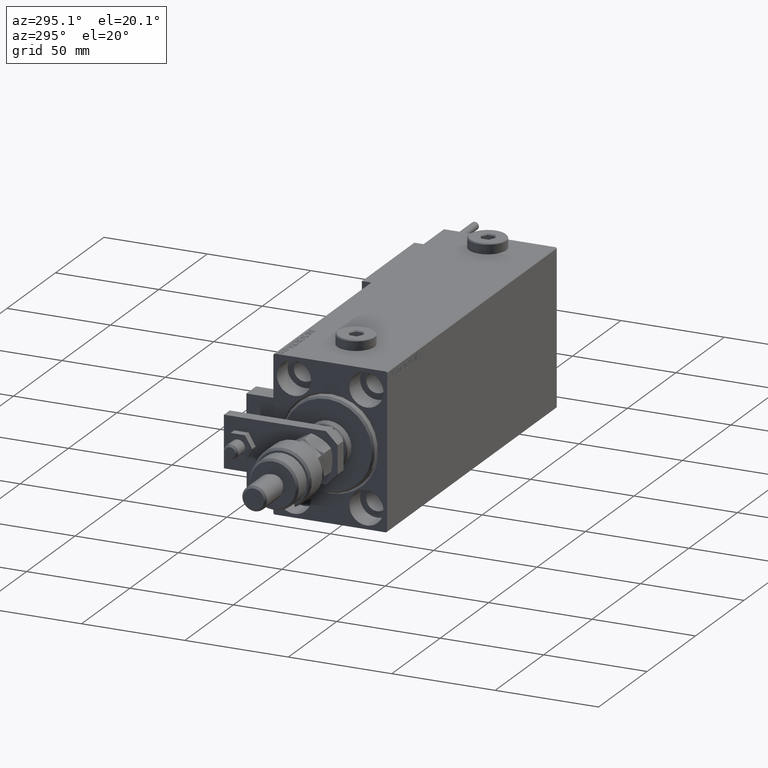
[diagram: clean part render]
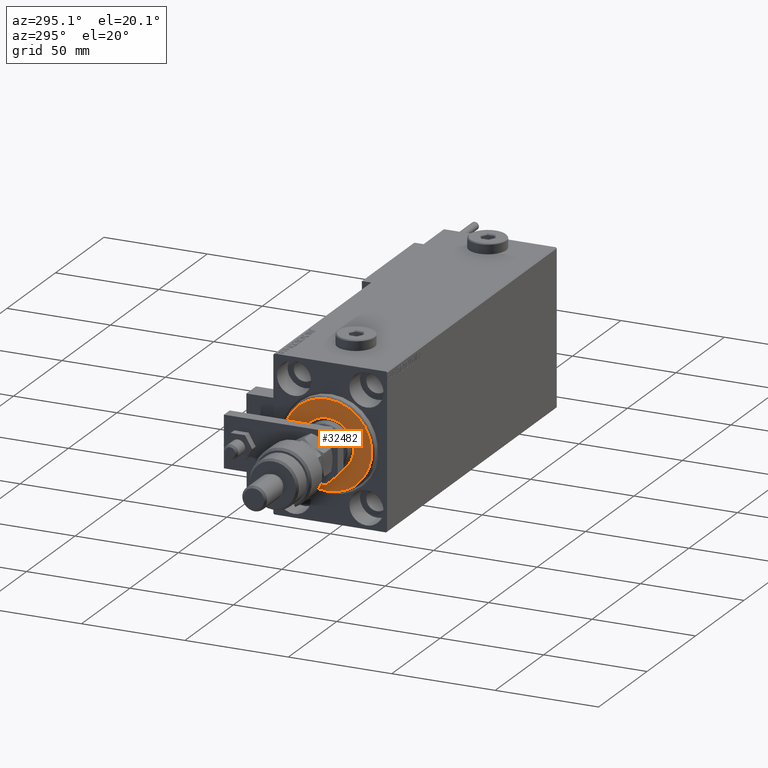
[diagram: same view with one face highlighted and labeled with its STEP entity id]
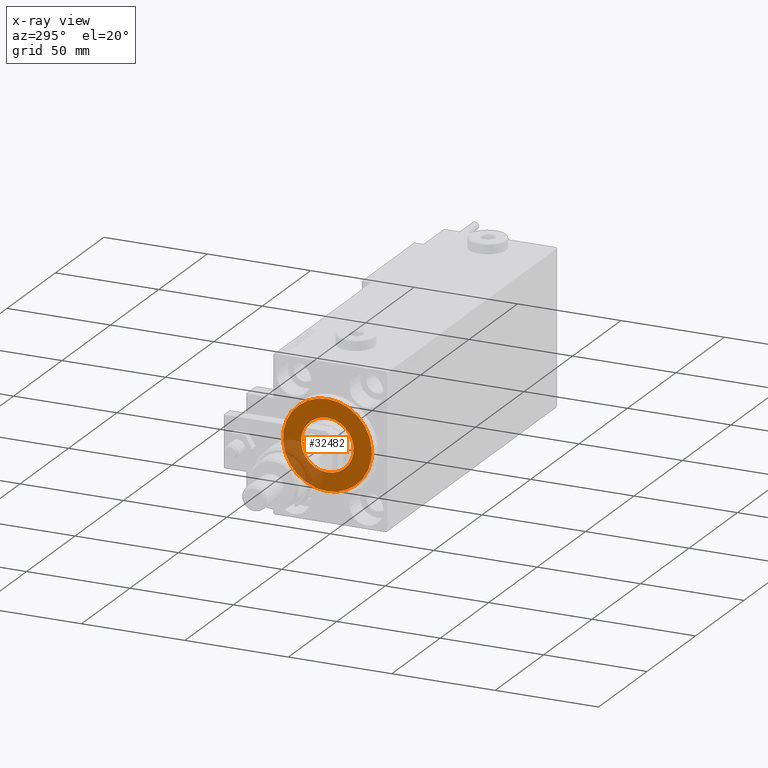
[diagram: x-ray of the same camera — body ghosted, the highlighted face saturated]
A machine part, auxiliary view. The second image highlights one B-rep face of the part: STEP entity #32482.
The next image is the same camera in x-ray: the body ghosted, the highlighted face saturated — about 22% of this face is hidden behind the body in this view.
In plain terms, the highlighted planar face has unit normal (-1, 0, 0).
Its self-contained STEP definition (entity closure, byte-faithful):
#80 = DIRECTION ( 'NONE',  ( 1.000000000000000000, -0.000000000000000000, 0.000000000000000000 ) ) ;
#1168 = CARTESIAN_POINT ( 'NONE',  ( 3.000000000000000000, 0.000000000000000000, 0.000000000000000000 ) ) ;
#2693 = DIRECTION ( 'NONE',  ( 0.000000000000000000, 0.000000000000000000, -1.000000000000000000 ) ) ;
#3299 = CARTESIAN_POINT ( 'NONE',  ( 3.000000000000000000, 2.694222958124177598E-15, -21.50000000000000355 ) ) ;
#4516 = DIRECTION ( 'NONE',  ( 0.000000000000000000, 0.000000000000000000, -1.000000000000000000 ) ) ;
#4545 = AXIS2_PLACEMENT_3D ( 'NONE', #51452, #47319, #42404 ) ;
#6548 = CARTESIAN_POINT ( 'NONE',  ( 3.000000000000000000, 0.000000000000000000, 0.000000000000000000 ) ) ;
#7020 = DIRECTION ( 'NONE',  ( -1.000000000000000000, 0.000000000000000000, -0.000000000000000000 ) ) ;
#7466 = CARTESIAN_POINT ( 'NONE',  ( 3.000000000000000000, 1.561424668912874914E-15, -12.75000000000000000 ) ) ;
#10516 = ORIENTED_EDGE ( 'NONE', *, *, #41917, .T. ) ;
#10667 = PLANE ( 'NONE',  #44939 ) ;
#11140 = CARTESIAN_POINT ( 'NONE',  ( 3.000000000000000000, 0.000000000000000000, 0.000000000000000000 ) ) ;
#12431 = CIRCLE ( 'NONE', #4545, 12.75000000000000000 ) ;
#13285 = AXIS2_PLACEMENT_3D ( 'NONE', #1168, #80, #21773 ) ;
#13320 = CIRCLE ( 'NONE', #13285, 21.50000000000000355 ) ;
#14334 = CIRCLE ( 'NONE', #21353, 21.50000000000000355 ) ;
#14784 = FACE_OUTER_BOUND ( 'NONE', #17396, .T. ) ;
#16476 = EDGE_CURVE ( 'NONE', #41195, #54300, #20733, .T. ) ;
#17396 = EDGE_LOOP ( 'NONE', ( #17988, #10516 ) ) ;
#17988 = ORIENTED_EDGE ( 'NONE', *, *, #45212, .T. ) ;
#19167 = DIRECTION ( 'NONE',  ( 1.000000000000000000, -0.000000000000000000, 0.000000000000000000 ) ) ;
#20733 = CIRCLE ( 'NONE', #51447, 12.75000000000000000 ) ;
#20989 = DIRECTION ( 'NONE',  ( 1.000000000000000000, -0.000000000000000000, 0.000000000000000000 ) ) ;
#21259 = CARTESIAN_POINT ( 'NONE',  ( 3.000000000000000000, 0.000000000000000000, 0.000000000000000000 ) ) ;
#21353 = AXIS2_PLACEMENT_3D ( 'NONE', #21259, #20989, #4516 ) ;
#21773 = DIRECTION ( 'NONE',  ( 0.000000000000000000, 0.000000000000000000, -1.000000000000000000 ) ) ;
#31531 = FACE_BOUND ( 'NONE', #38882, .T. ) ;
#32482 = ADVANCED_FACE ( 'NONE', ( #14784, #31531 ), #10667, .T. ) ;
#35693 = CARTESIAN_POINT ( 'NONE',  ( 3.000000000000000000, 0.000000000000000000, 12.75000000000000000 ) ) ;
#38196 = VERTEX_POINT ( 'NONE', #39936 ) ;
#38882 = EDGE_LOOP ( 'NONE', ( #50172, #53700 ) ) ;
#39936 = CARTESIAN_POINT ( 'NONE',  ( 3.000000000000000000, 0.000000000000000000, 21.50000000000000355 ) ) ;
#40537 = DIRECTION ( 'NONE',  ( 0.000000000000000000, 0.000000000000000000, -1.000000000000000000 ) ) ;
#41195 = VERTEX_POINT ( 'NONE', #7466 ) ;
#41917 = EDGE_CURVE ( 'NONE', #49175, #38196, #13320, .T. ) ;
#41928 = EDGE_CURVE ( 'NONE', #54300, #41195, #12431, .T. ) ;
#42404 = DIRECTION ( 'NONE',  ( 0.000000000000000000, 0.000000000000000000, -1.000000000000000000 ) ) ;
#44939 = AXIS2_PLACEMENT_3D ( 'NONE', #6548, #19167, #2693 ) ;
#45212 = EDGE_CURVE ( 'NONE', #38196, #49175, #14334, .T. ) ;
#47319 = DIRECTION ( 'NONE',  ( -1.000000000000000000, 0.000000000000000000, -0.000000000000000000 ) ) ;
#49175 = VERTEX_POINT ( 'NONE', #3299 ) ;
#50172 = ORIENTED_EDGE ( 'NONE', *, *, #41928, .T. ) ;
#51447 = AXIS2_PLACEMENT_3D ( 'NONE', #11140, #7020, #40537 ) ;
#51452 = CARTESIAN_POINT ( 'NONE',  ( 3.000000000000000000, 0.000000000000000000, 0.000000000000000000 ) ) ;
#53700 = ORIENTED_EDGE ( 'NONE', *, *, #16476, .T. ) ;
#54300 = VERTEX_POINT ( 'NONE', #35693 ) ;